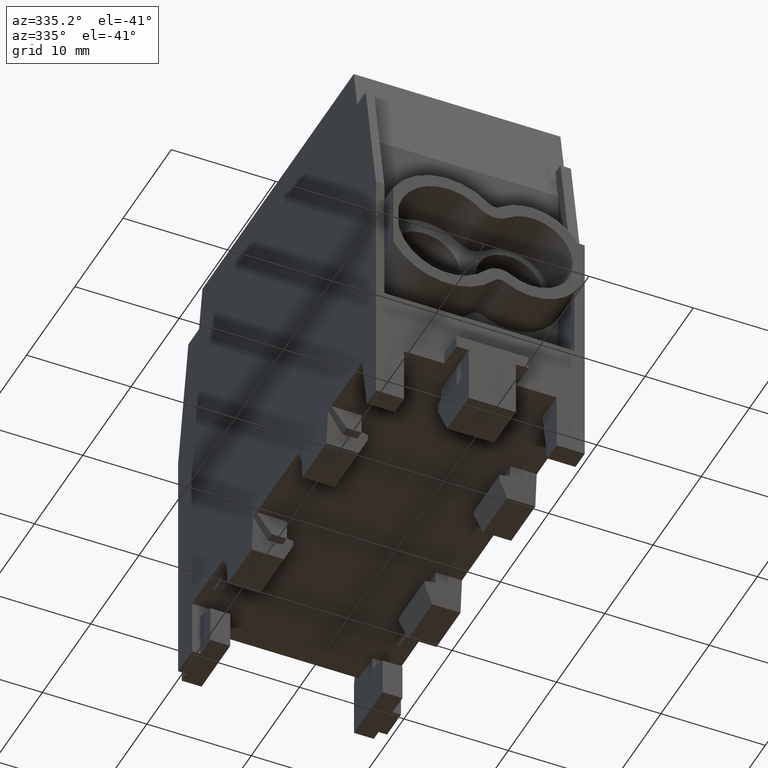
[diagram: clean part render]
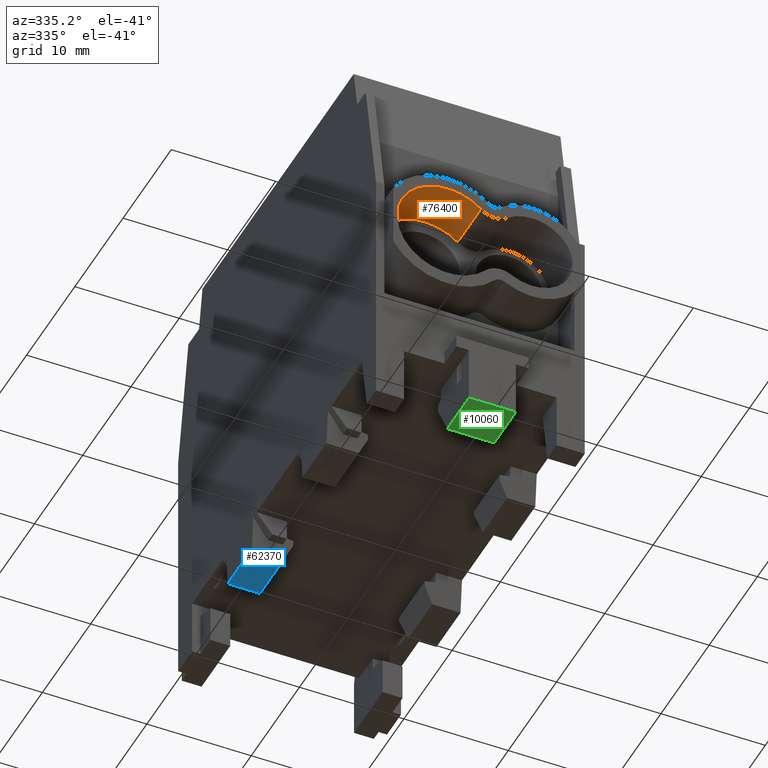
[diagram: same view with three faces highlighted in distinct colors, each labeled with its STEP entity id]
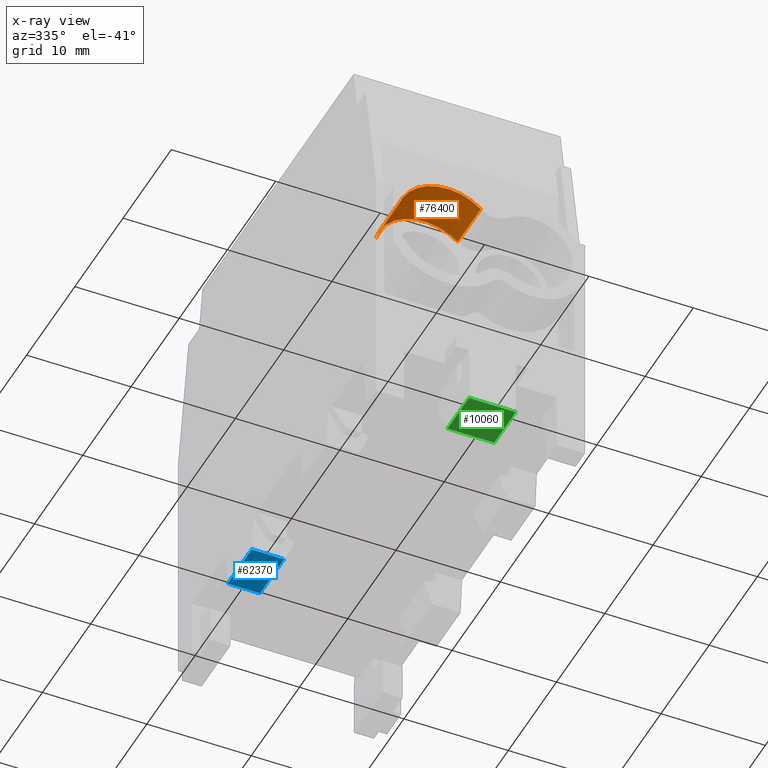
[diagram: x-ray of the same camera — body ghosted, the three highlighted faces saturated]
A machine part, auxiliary view with three faces highlighted in distinct colors.
The next image is the same camera in x-ray (body ghosted, the three faces saturated) — at least one of them is partly hidden behind the body in this view.
Their STEP definitions:

[orange] entity #76400 — the highlighted cylindrical surface (partial cylindrical patch) has radius 4.85 mm, axis along (0, 1, 0).
#73010=CARTESIAN_POINT('',(-8.5,-17.15,-20.5484884183464));
#73020=VERTEX_POINT('',#73010);
#73070=CARTESIAN_POINT('',(-3.8,-17.15,-21.745359338705));
#73080=DIRECTION('',(-2.77555756156289E-16,-1.,-5.80952514931361E-16));
#73090=DIRECTION('',(3.60536343048376E-17,-5.80952514931361E-16,1.));
#73100=AXIS2_PLACEMENT_3D('',#73070,#73080,#73090);
#73110=CIRCLE('',#73100,4.85);
#73120=CARTESIAN_POINT('',(-0.618119762768196,-17.15,-18.0850126125172))
;
#73130=VERTEX_POINT('',#73120);
#73140=EDGE_CURVE('',#73130,#73020,#73110,.T.);
#75270=CARTESIAN_POINT('',(-0.618119762768199,-21.95,-18.0850126125172))
;
#75280=VERTEX_POINT('',#75270);
#75310=CARTESIAN_POINT('',(-3.80000000000001,-21.95,-21.745359338705));
#75320=DIRECTION('',(2.77555756156289E-16,1.,5.80952514931361E-16));
#75330=DIRECTION('',(-0.947368421052632,7.69582853213796E-17,
0.320145396331485));
#75340=AXIS2_PLACEMENT_3D('',#75310,#75320,#75330);
#75350=CIRCLE('',#75340,4.85);
#75360=CARTESIAN_POINT('',(-8.5,-21.95,-20.5484884183464));
#75370=VERTEX_POINT('',#75360);
#75380=EDGE_CURVE('',#75370,#75280,#75350,.T.);
#75710=CARTESIAN_POINT('',(-8.5,-21.95,-20.5484884183464));
#75720=DIRECTION('',(2.77555756156289E-16,1.,5.80952514931361E-16));
#75730=VECTOR('',#75720,1.);
#75740=LINE('',#75710,#75730);
#75750=EDGE_CURVE('',#75370,#73020,#75740,.T.);
#76240=CARTESIAN_POINT('',(-3.80000000000001,-21.95,-21.745359338705));
#76250=DIRECTION('',(2.77555756156289E-16,1.,5.80952514931361E-16));
#76260=DIRECTION('',(-0.947368421052632,7.69582853213796E-17,
0.320145396331485));
#76270=AXIS2_PLACEMENT_3D('',#76240,#76250,#76260);
#76280=CYLINDRICAL_SURFACE('',#76270,4.85);
#76290=ORIENTED_EDGE('',*,*,#75750,.T.);
#76300=ORIENTED_EDGE('',*,*,#75380,.F.);
#76310=CARTESIAN_POINT('',(-0.618119762768199,-21.95,-18.0850126125172))
;
#76320=DIRECTION('',(-2.77555756156289E-16,-1.,-5.80952514931361E-16));
#76330=VECTOR('',#76320,1.);
#76340=LINE('',#76310,#76330);
#76350=EDGE_CURVE('',#73130,#75280,#76340,.T.);
#76360=ORIENTED_EDGE('',*,*,#76350,.T.);
#76370=ORIENTED_EDGE('',*,*,#73140,.F.);
#76380=EDGE_LOOP('',(#76370,#76360,#76300,#76290));
#76390=FACE_OUTER_BOUND('',#76380,.T.);
#76400=ADVANCED_FACE('',(#76390),#76280,.F.);

[blue] entity #62370 — the highlighted planar face has unit normal (-0, -0, 1).
#33640=CARTESIAN_POINT('',(-10.,5.25611963054814,-39.245359338705));
#33650=VERTEX_POINT('',#33640);
#33680=CARTESIAN_POINT('',(-10.,1.19069148203261E-14,-39.245359338705));
#33690=DIRECTION('',(-1.70544636617791E-32,-1.,-5.80952514931359E-16));
#33700=VECTOR('',#33690,1.);
#33710=LINE('',#33680,#33700);
#33720=CARTESIAN_POINT('',(-10.,10.2438803694519,-39.245359338705));
#33730=VERTEX_POINT('',#33720);
#33740=EDGE_CURVE('',#33730,#33650,#33710,.T.);
#49390=CARTESIAN_POINT('',(-6.90376192905079,10.2438803694519,
-39.245359338705));
#49400=VERTEX_POINT('',#49390);
#49680=CARTESIAN_POINT('',(2.1785550773759E-15,10.2438803694519,
-39.2453593387049));
#49690=DIRECTION('',(-1.,-2.92917939199214E-16,-6.57605532649422E-15));
#49700=VECTOR('',#49690,1.);
#49710=LINE('',#49680,#49700);
#49720=EDGE_CURVE('',#49400,#33730,#49710,.T.);
#62140=CARTESIAN_POINT('',(-6.90376192905079,11.25,-39.245359338705));
#62150=DIRECTION('',(-6.57605532649422E-15,-5.80952514931359E-16,1.));
#62160=DIRECTION('',(1.,-2.77555756156293E-16,6.57605532649422E-15));
#62170=AXIS2_PLACEMENT_3D('',#62140,#62150,#62160);
#62180=PLANE('',#62170);
#62190=ORIENTED_EDGE('',*,*,#49720,.F.);
#62200=ORIENTED_EDGE('',*,*,#33740,.F.);
#62210=CARTESIAN_POINT('',(2.1785550773759E-15,5.25611963054813,
-39.2453593387049));
#62220=DIRECTION('',(1.,-8.48029451511799E-16,6.57605532649422E-15));
#62230=VECTOR('',#62220,1.);
#62240=LINE('',#62210,#62230);
#62250=CARTESIAN_POINT('',(-6.90376192905079,5.25611963054814,
-39.245359338705));
#62260=VERTEX_POINT('',#62250);
#62270=EDGE_CURVE('',#33650,#62260,#62240,.T.);
#62280=ORIENTED_EDGE('',*,*,#62270,.F.);
#62290=CARTESIAN_POINT('',(-6.90376192905079,1.19069148203261E-14,
-39.245359338705));
#62300=DIRECTION('',(2.77555756156289E-16,1.,5.80952514931361E-16));
#62310=VECTOR('',#62300,1.);
#62320=LINE('',#62290,#62310);
#62330=EDGE_CURVE('',#62260,#49400,#62320,.T.);
#62340=ORIENTED_EDGE('',*,*,#62330,.F.);
#62350=EDGE_LOOP('',(#62340,#62280,#62200,#62190));
#62360=FACE_OUTER_BOUND('',#62350,.T.);
#62370=ADVANCED_FACE('',(#62360),#62180,.F.);

[green] entity #10060 — the highlighted planar face has unit normal (-0, -0, 1).
#9670=CARTESIAN_POINT('',(2.24999999999999,-23.,-41.245359338705));
#9680=DIRECTION('',(-5.55111512312577E-17,-5.80952514931361E-16,1.));
#9690=DIRECTION('',(1.,-2.77555756156289E-16,5.55111512312575E-17));
#9700=AXIS2_PLACEMENT_3D('',#9670,#9680,#9690);
#9710=PLANE('',#9700);
#9720=CARTESIAN_POINT('',(2.25,1.25137083378762E-14,-41.245359338705));
#9730=DIRECTION('',(1.70544636617789E-32,1.,5.80952514931361E-16));
#9740=VECTOR('',#9730,1.);
#9750=LINE('',#9720,#9740);
#9760=CARTESIAN_POINT('',(2.25,-23.,-41.245359338705));
#9770=VERTEX_POINT('',#9760);
#9780=CARTESIAN_POINT('',(2.25,-18.5,-41.245359338705));
#9790=VERTEX_POINT('',#9780);
#9800=EDGE_CURVE('',#9770,#9790,#9750,.T.);
#9810=ORIENTED_EDGE('',*,*,#9800,.F.);
#9820=CARTESIAN_POINT('',(2.28957737983842E-15,-18.5,-41.245359338705));
#9830=DIRECTION('',(1.,-2.77555756156289E-16,5.55111512312575E-17));
#9840=VECTOR('',#9830,1.);
#9850=LINE('',#9820,#9840);
#9860=CARTESIAN_POINT('',(-2.25,-18.5,-41.245359338705));
#9870=VERTEX_POINT('',#9860);
#9880=EDGE_CURVE('',#9870,#9790,#9850,.T.);
#9890=ORIENTED_EDGE('',*,*,#9880,.T.);
#9900=CARTESIAN_POINT('',(-2.25,1.25137083378762E-14,-41.245359338705));
#9910=DIRECTION('',(1.70544636617789E-32,1.,5.80952514931361E-16));
#9920=VECTOR('',#9910,1.);
#9930=LINE('',#9900,#9920);
#9940=CARTESIAN_POINT('',(-2.25,-23.,-41.245359338705));
#9950=VERTEX_POINT('',#9940);
#9960=EDGE_CURVE('',#9950,#9870,#9930,.T.);
#9970=ORIENTED_EDGE('',*,*,#9960,.T.);
#9980=CARTESIAN_POINT('',(2.28957737983842E-15,-23.,-41.245359338705));
#9990=DIRECTION('',(-1.,4.93038065763132E-32,-5.55111512312577E-17));
#10000=VECTOR('',#9990,1.);
#10010=LINE('',#9980,#10000);
#10020=EDGE_CURVE('',#9770,#9950,#10010,.T.);
#10030=ORIENTED_EDGE('',*,*,#10020,.T.);
#10040=EDGE_LOOP('',(#10030,#9970,#9890,#9810));
#10050=FACE_OUTER_BOUND('',#10040,.T.);
#10060=ADVANCED_FACE('',(#10050),#9710,.F.);